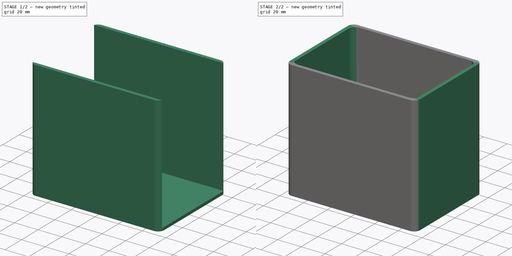
[diagram: build sequence overview — one tinted view per stage of 2, left to right]
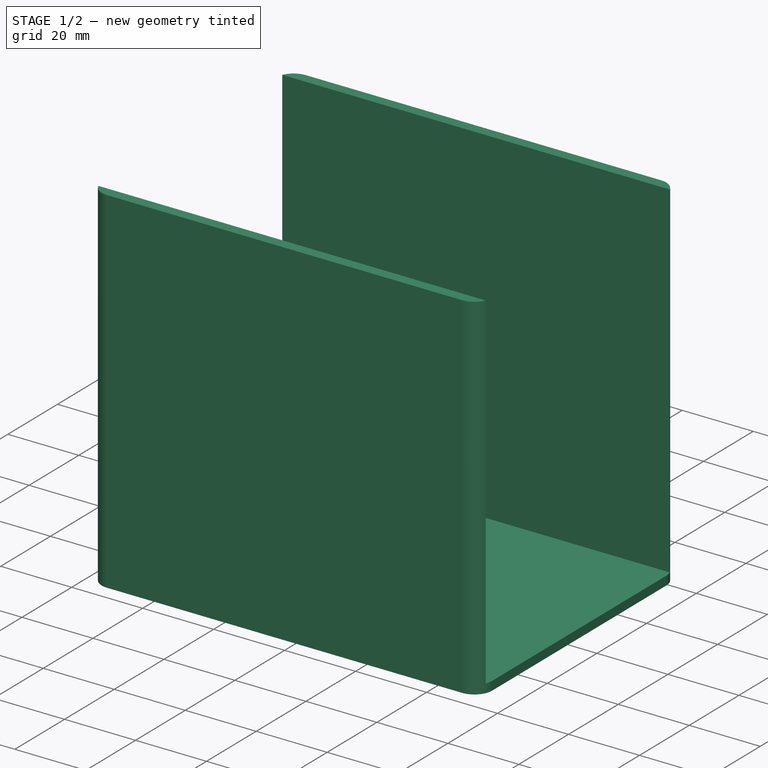
[diagram: stage 1 of 2 — iso view after this stage's code; geometry added in this stage tinted green]
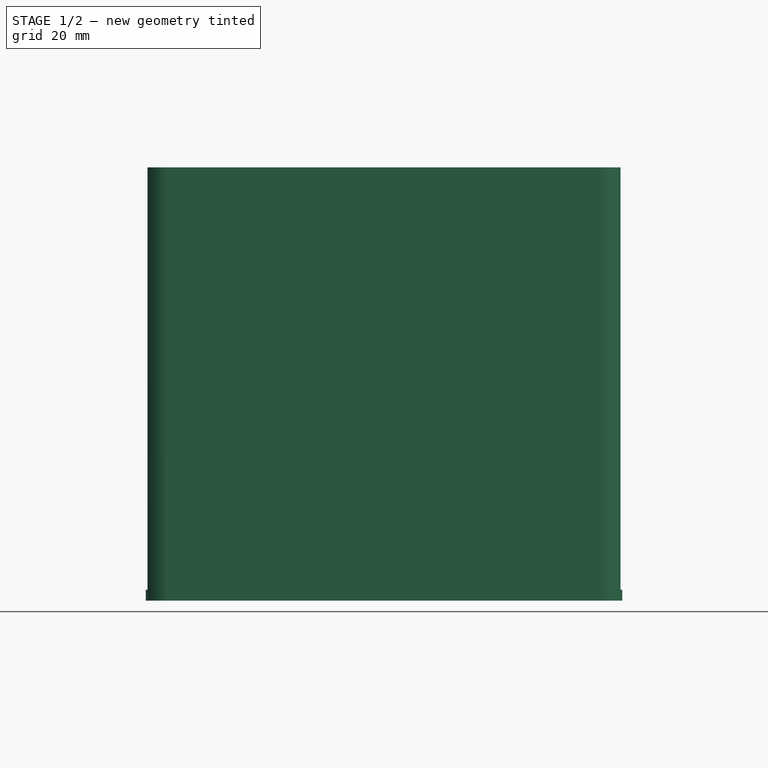
[diagram: stage 1 of 2 — front view after this stage's code; geometry added in this stage tinted green]
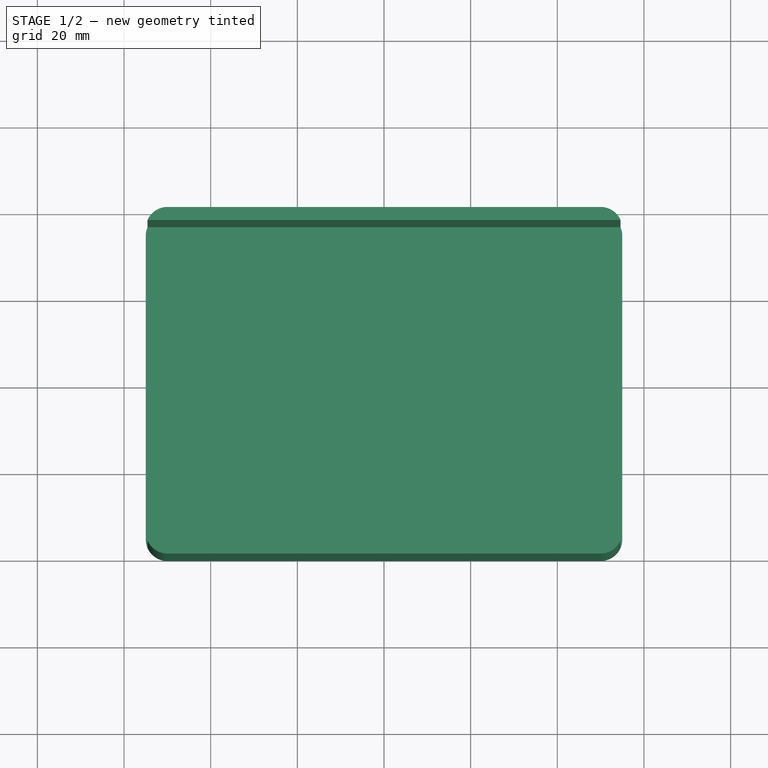
[diagram: stage 1 of 2 — top view after this stage's code; geometry added in this stage tinted green]
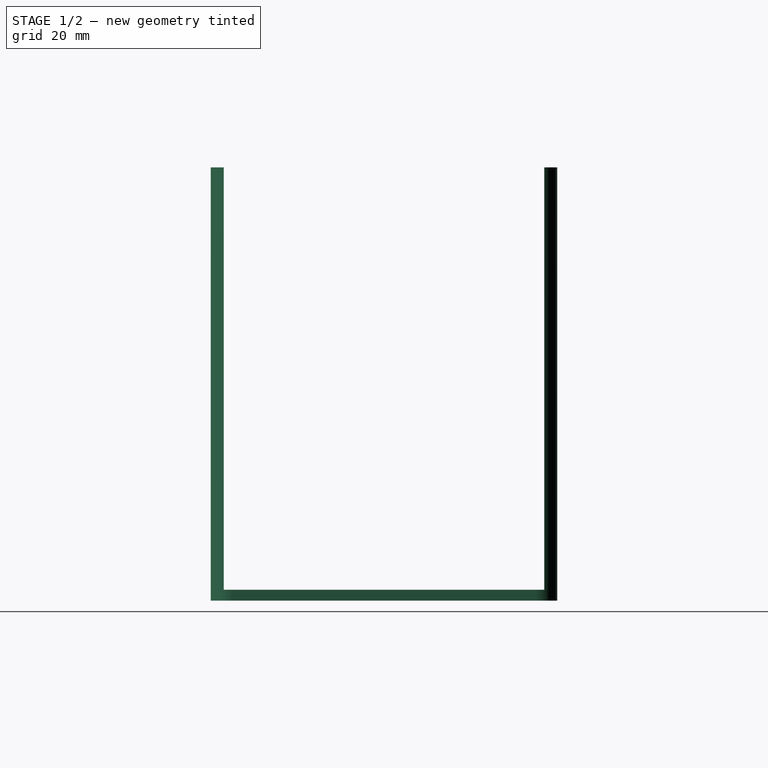
[diagram: stage 1 of 2 — right view after this stage's code; geometry added in this stage tinted green]
FCSTD DOCUMENT  (FreeCAD 0.19R24267 +99 (Git))
Label: case_spi4_v4
License: All rights reserved
LicenseURL: http://en.wikipedia.org/wiki/All_rights_reserved
objects: Sketcher::SketchObject×4, PartDesign::Pad×2, PartDesign::Pocket×2, PartDesign::Body×1, Spreadsheet::Sheet×1
note: 13 computed .brp shape members not serialized (recipe doc carries the construction recipe); baked Part::Feature solids carry a one-line shape summary decoded from their .brp

FEATURE [Sketcher::SketchObject] Sketch  label="external_rough_case"
  FullyConstrained = true
  MapMode = 5
  Support = -> [XY_Plane]
  expr: Constraints[18] = <<param>>.extW
  expr: Constraints[19] = <<param>>.extL
  expr: Constraints[20] = <<param>>.extR
  sketch-geometry (10):
    g0: ArcOfCircle CenterX=-50 CenterY=35 CenterZ=0 NormalX=0 NormalY=0 NormalZ=1 AngleXU=0 Radius=5 StartAngle=1.5708 EndAngle=3.14159
    g1: ArcOfCircle CenterX=50 CenterY=35 CenterZ=0 NormalX=0 NormalY=0 NormalZ=1 AngleXU=0 Radius=5 StartAngle=9e-16 EndAngle=1.57079
    g2: ArcOfCircle CenterX=50 CenterY=-35 CenterZ=0 NormalX=0 NormalY=0 NormalZ=1 AngleXU=0 Radius=5 StartAngle=4.71239 EndAngle=6.28319
    g3: ArcOfCircle CenterX=-50 CenterY=-35 CenterZ=0 NormalX=0 NormalY=0 NormalZ=1 AngleXU=0 Radius=5 StartAngle=3.14159 EndAngle=4.71239
    g4: LineSegment StartX=-55 StartY=35 StartZ=0 EndX=-55 EndY=-35 EndZ=0
    g5: LineSegment StartX=55 StartY=-35 StartZ=0 EndX=55 EndY=35 EndZ=0
    g6: LineSegment StartX=50 StartY=40 StartZ=0 EndX=-50 EndY=40 EndZ=0
    g7: LineSegment StartX=-50 StartY=-40 StartZ=0 EndX=50 EndY=-40 EndZ=0
    g8: LineSegment StartX=-55 StartY=35 StartZ=0 EndX=-50 EndY=35 EndZ=0
    g9: LineSegment StartX=-50 StartY=40 StartZ=0 EndX=-50 EndY=35 EndZ=0
  constraints (27):
    c: Symmetric(g0,g3,g-1)
    c: Symmetric(g1,g2,g-1)
    c: Symmetric(g1,g0,g-2)
    c: Coincident(g4,g0)
    c: Coincident(g4,g3)
    c: Vertical(g4)
    c: Coincident(g5,g2)
    c: Coincident(g5,g1)
    c: Vertical(g5)
    c: Coincident(g6,g1)
    c: Coincident(g6,g0)
    c: Horizontal(g6)
    c: Coincident(g7,g3)
    c: Coincident(g7,g2)
    c: Horizontal(g7)
    c: Equal(g6,g7)
    c: Symmetric(g0,g1,g-2)
    c: Symmetric(g2,g1,g-1)
    c: DistanceX(g0,g1) = 100
    c: DistanceY(g3,g0) = 70
    c: Radius(g0) = 5
    c: Coincident(g8,g0)
    c: Coincident(g8,g0)
    c: Coincident(g9,g0)
    c: Coincident(g9,g0)
    c: Perpendicular(g8,g9)
    c: Vertical(g9)
FEATURE [PartDesign::Pad] Pad
  Direction = (1,1,1)
  Length = 100
  Length2 = 100
  Profile = -> Sketch
  Type = 0
  expr: Length = <<param>>.case_height
FEATURE [Sketcher::SketchObject] Sketch001  label="inside_space"
  FullyConstrained = true
  MapMode = 5
  Placement = pos=(0,0,100) rot=(0,0,1;0rad)
  Support = -> [Pad]
  expr: Constraints[33] = <<param>>.intW
  expr: Constraints[32] = <<param>>.intL
  expr: Constraints[34] = <<param>>.intR
  sketch-geometry (13):
    g0: ArcOfCircle CenterX=-97 CenterY=32 CenterZ=0 NormalX=0 NormalY=0 NormalZ=1 AngleXU=0 Radius=5 StartAngle=1.5708 EndAngle=3.14159
    g1: ArcOfCircle CenterX=-97 CenterY=-32 CenterZ=0 NormalX=0 NormalY=0 NormalZ=1 AngleXU=0 Radius=5 StartAngle=3.14159 EndAngle=4.71239
    g2: ArcOfCircle CenterX=97 CenterY=-32 CenterZ=0 NormalX=0 NormalY=0 NormalZ=1 AngleXU=0 Radius=5 StartAngle=4.71239 EndAngle=6.28319
    g3: ArcOfCircle CenterX=97 CenterY=32 CenterZ=0 NormalX=0 NormalY=0 NormalZ=1 AngleXU=0 Radius=5 StartAngle=3e-16 EndAngle=1.5708
    g4: LineSegment StartX=-97 StartY=37 StartZ=0 EndX=97 EndY=37 EndZ=0
    g5: LineSegment StartX=102 StartY=32 StartZ=0 EndX=102 EndY=-32 EndZ=0
    g6: LineSegment StartX=97 StartY=-37 StartZ=0 EndX=-97 EndY=-37 EndZ=0
    g7: LineSegment StartX=-102 StartY=-32 StartZ=0 EndX=-102 EndY=32 EndZ=0
    g8: LineSegment StartX=-97 StartY=37 StartZ=0 EndX=-97 EndY=-37 EndZ=0
    g9: LineSegment StartX=97 StartY=-37 StartZ=0 EndX=97 EndY=37 EndZ=0
    g10: LineSegment StartX=102 StartY=32 StartZ=0 EndX=-102 EndY=32 EndZ=0
    g11: LineSegment StartX=-102 StartY=-32 StartZ=0 EndX=102 EndY=-32 EndZ=0
    g12: GeomPoint X=97 Y=32 Z=0
  constraints (35):
    c: Coincident(g4,g0)
    c: Coincident(g4,g3)
    c: Coincident(g5,g3)
    c: Coincident(g5,g2)
    c: Vertical(g5)
    c: Coincident(g6,g2)
    c: Coincident(g6,g1)
    c: Horizontal(g6)
    c: Coincident(g7,g1)
    c: Coincident(g7,g0)
    c: Coincident(g8,g0)
    c: Coincident(g8,g1)
    c: Coincident(g9,g2)
    c: Coincident(g9,g3)
    c: Coincident(g10,g3)
    c: Coincident(g10,g0)
    c: Coincident(g11,g1)
    c: Coincident(g11,g2)
    c: Horizontal(g11)
    c: Horizontal(g10)
    c: Vertical(g7)
    c: Vertical(g8)
    c: Equal(g3,g2)
    c: Equal(g2,g1)
    c: Equal(g1,g0)
    c: Symmetric(g3,g2,g-1)
    c: PointOnObject(g12,g9)
    c: PointOnObject(g12,g10)
    c: Coincident(g3,g12)
    c: PointOnObject(g1,g11)
    c: PointOnObject(g1,g8)
    c: Symmetric(g0,g3,g-2)
    c: DistanceY(g7,g7) = 64
    c: DistanceX(g4,g4) = 194
    c: Radius(g0) = 5
FEATURE [PartDesign::Pocket] Pocket
  BaseFeature = -> Pad
  Length = 97.5
  Length2 = 100
  Profile = -> Sketch001
  Refine = true
  Type = 0
  expr: Length = <<param>>.case_height - <<param>>.floor
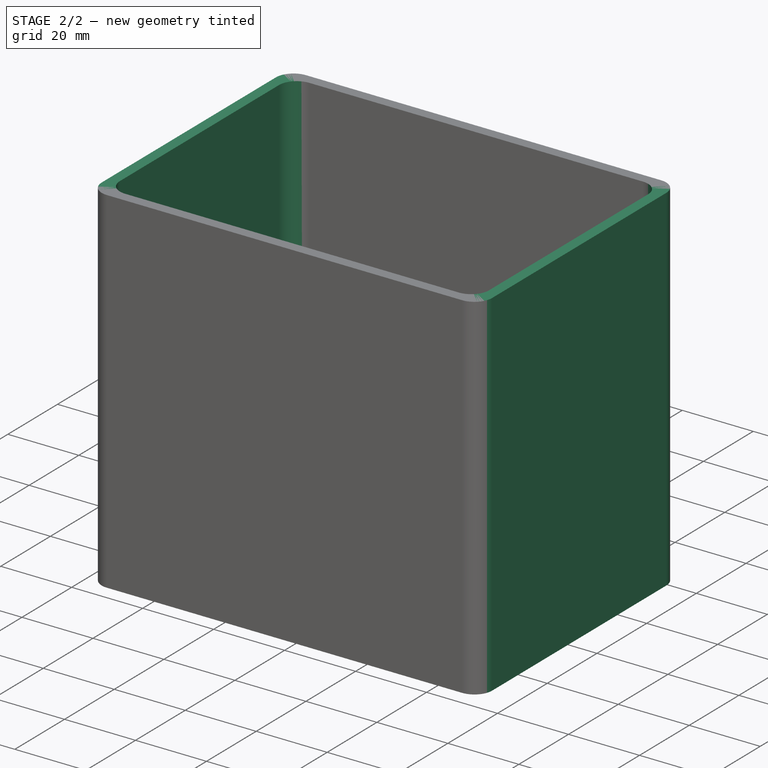
[diagram: stage 2 of 2 — iso view after this stage's code; geometry added in this stage tinted green]
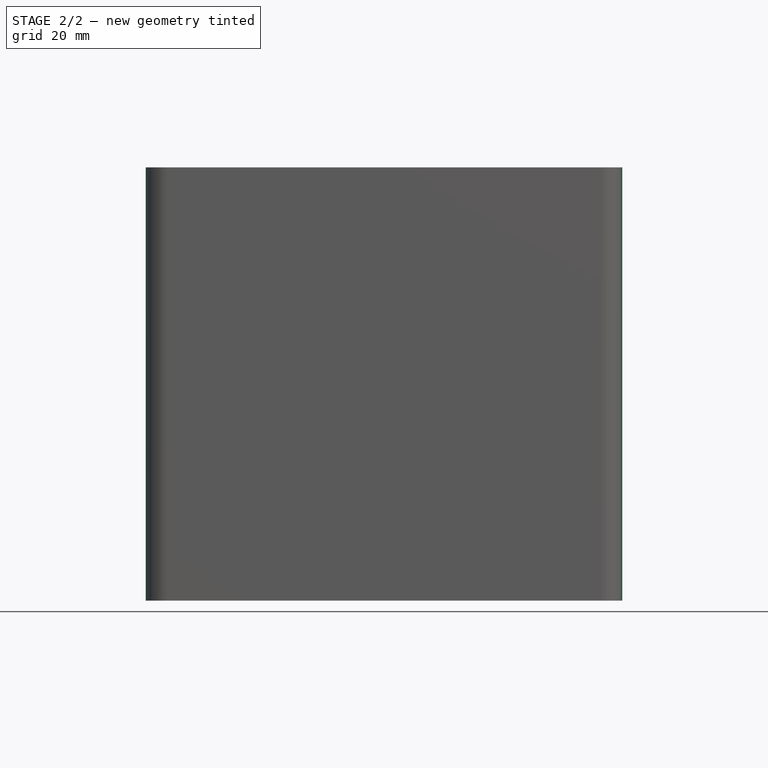
[diagram: stage 2 of 2 — front view after this stage's code; geometry added in this stage tinted green]
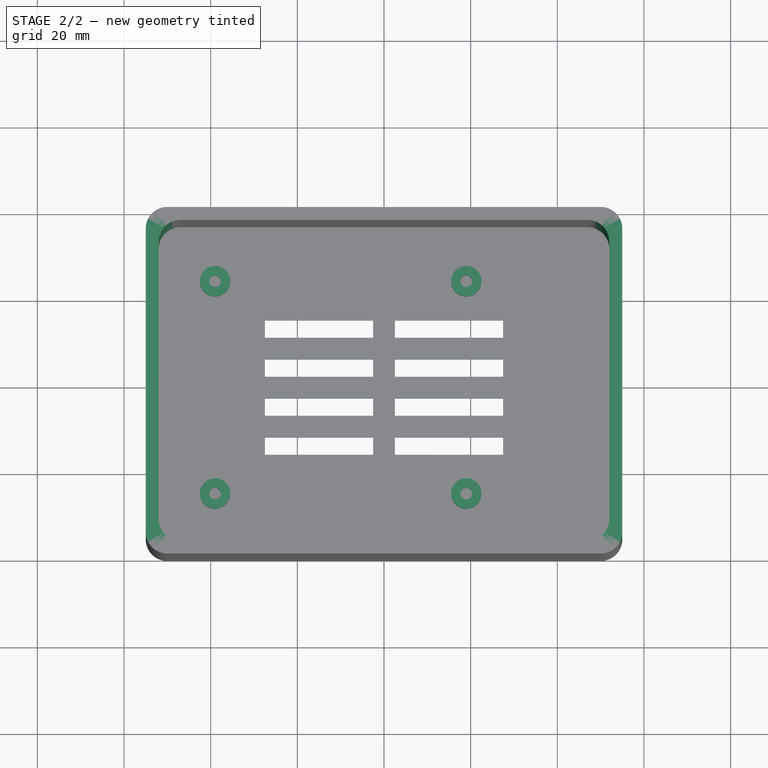
[diagram: stage 2 of 2 — top view after this stage's code; geometry added in this stage tinted green]
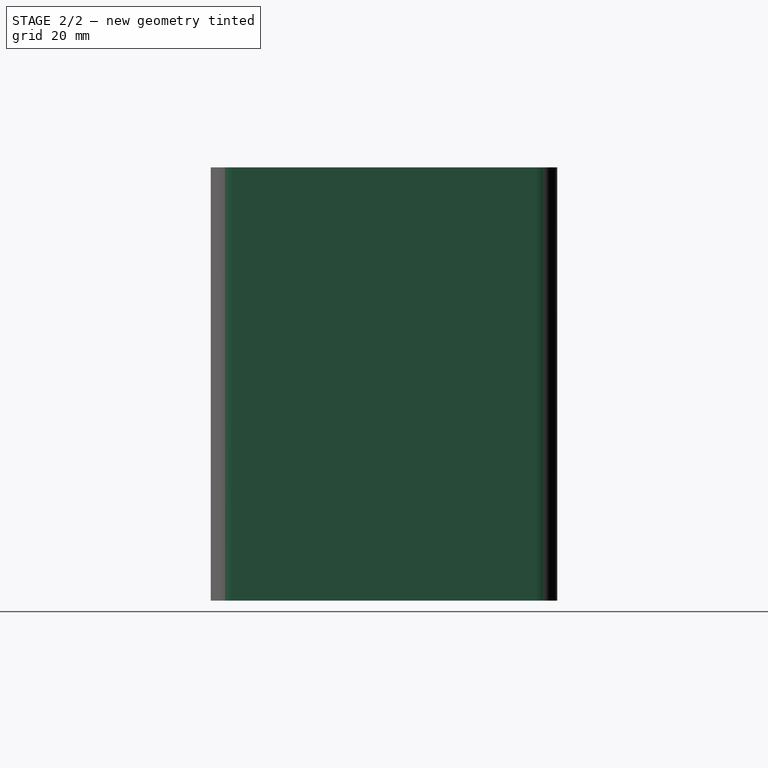
[diagram: stage 2 of 2 — right view after this stage's code; geometry added in this stage tinted green]
FEATURE [Sketcher::SketchObject] Sketch002  label="mounting_pads"
  FullyConstrained = true
  MapMode = 5
  Placement = pos=(0,0,2.5) rot=(0,0,1;0rad)
  Support = -> [Pocket]
  expr: Constraints[9] = <<param>>.pad_int
  expr: Constraints[10] = <<param>>.pad_ext
  sketch-geometry (12):
    g0: LineSegment StartX=-39 StartY=24.5 StartZ=0 EndX=19 EndY=24.5 EndZ=0
    g1: LineSegment StartX=19 StartY=24.5 StartZ=0 EndX=19 EndY=-24.5 EndZ=0
    g2: LineSegment StartX=19 StartY=-24.5 StartZ=0 EndX=-39 EndY=-24.5 EndZ=0
    g3: LineSegment StartX=-39 StartY=-24.5 StartZ=0 EndX=-39 EndY=24.5 EndZ=0
    g4: Circle CenterX=-39 CenterY=24.5 CenterZ=0 NormalX=0 NormalY=0 NormalZ=1 AngleXU=0 Radius=1.35
    g5: Circle CenterX=-39 CenterY=24.5 CenterZ=0 NormalX=0 NormalY=0 NormalZ=1 AngleXU=0 Radius=5
    g6: Circle CenterX=-39 CenterY=-24.5 CenterZ=0 NormalX=0 NormalY=0 NormalZ=1 AngleXU=0 Radius=5
    g7: Circle CenterX=-39 CenterY=-24.5 CenterZ=0 NormalX=0 NormalY=0 NormalZ=1 AngleXU=0 Radius=1.35
    g8: Circle CenterX=19 CenterY=-24.5 CenterZ=0 NormalX=0 NormalY=0 NormalZ=1 AngleXU=0 Radius=1.35
    g9: Circle CenterX=19 CenterY=-24.5 CenterZ=0 NormalX=0 NormalY=0 NormalZ=1 AngleXU=0 Radius=5
    g10: Circle CenterX=19 CenterY=24.5 CenterZ=0 NormalX=0 NormalY=0 NormalZ=1 AngleXU=0 Radius=1.35
    g11: Circle CenterX=19 CenterY=24.5 CenterZ=0 NormalX=0 NormalY=0 NormalZ=1 AngleXU=0 Radius=5
  constraints (27):
    c: Coincident(g0,g1)
    c: Coincident(g1,g2)
    c: Coincident(g2,g3)
    c: Coincident(g3,g0)
    c: Horizontal(g0)
    c: Horizontal(g2)
    c: Vertical(g3)
    c: Coincident(g4,g0)
    c: Coincident(g5,g4)
    c: Radius(g4) = 1.35
    c: Radius(g5) = 5
    c: Coincident(g6,g7)
    c: Equal(g4,g7) = 1.35
    c: Equal(g5,g6) = 3.25
    c: Coincident(g7,g2)
    c: Coincident(g9,g8)
    c: Equal(g4,g8) = 1.35
    c: Equal(g5,g9) = 3.25
    c: Coincident(g9,g1)
    c: Coincident(g11,g10)
    c: Equal(g4,g10) = 1.35
    c: Equal(g5,g11) = 3.25
    c: Coincident(g11,g0)
    c: DistanceX(g0,g0) = 58
    c: DistanceY(g3,g3) = 49
    c: Symmetric(g10,g8,g-1)
    c: DistanceX(g6,g-1) = 39
FEATURE [PartDesign::Pad] Pad001
  BaseFeature = -> Pocket
  Direction = (1,1,1)
  Length = 5
  Length2 = 100
  Profile = -> Sketch002
  Refine = true
  Type = 0
  expr: Length = <<param>>.pad_height
FEATURE [Sketcher::SketchObject] Sketch003  label="bottom_vents"
  FullyConstrained = true
  MapMode = 5
  Placement = pos=(0,0,7.5) rot=(0,0,1;0rad)
  Support = -> [Pad001]
  expr: Constraints[8] = <<param>>.vent_W
  expr: Constraints[48] = <<param>>.vent_S
  expr: Constraints[9] = <<param>>.vent_L
  expr: Constraints[113] = <<param>>.vent_S
  sketch-geometry (42):
    g0: LineSegment StartX=-27.5 StartY=15.5 StartZ=0 EndX=-2.5 EndY=15.5 EndZ=0
    g1: LineSegment StartX=-2.5 StartY=15.5 StartZ=0 EndX=-2.5 EndY=11.5 EndZ=0
    g2: LineSegment StartX=-2.5 StartY=11.5 StartZ=0 EndX=-27.5 EndY=11.5 EndZ=0
    g3: LineSegment StartX=-27.5 StartY=11.5 StartZ=0 EndX=-27.5 EndY=15.5 EndZ=0
    g4: LineSegment StartX=2.5 StartY=15.5 StartZ=0 EndX=27.5 EndY=15.5 EndZ=0
    g5: LineSegment StartX=27.5 StartY=15.5 StartZ=0 EndX=27.5 EndY=11.5 EndZ=0
    g6: LineSegment StartX=27.5 StartY=11.5 StartZ=0 EndX=2.5 EndY=11.5 EndZ=0
    g7: LineSegment StartX=2.5 StartY=11.5 StartZ=0 EndX=2.5 EndY=15.5 EndZ=0
    g8: LineSegment StartX=-27.5 StartY=6.5 StartZ=0 EndX=-2.5 EndY=6.5 EndZ=0
    g9: LineSegment StartX=-2.5 StartY=6.5 StartZ=0 EndX=-2.5 EndY=2.5 EndZ=0
    g10: LineSegment StartX=-2.5 StartY=2.5 StartZ=0 EndX=-27.5 EndY=2.5 EndZ=0
    g11: LineSegment StartX=-27.5 StartY=2.5 StartZ=0 EndX=-27.5 EndY=6.5 EndZ=0
    g12: LineSegment StartX=2.5 StartY=6.5 StartZ=0 EndX=27.5 EndY=6.5 EndZ=0
    g13: LineSegment StartX=27.5 StartY=6.5 StartZ=0 EndX=27.5 EndY=2.5 EndZ=0
    g14: LineSegment StartX=27.5 StartY=2.5 StartZ=0 EndX=2.5 EndY=2.5 EndZ=0
    g15: LineSegment StartX=2.5 StartY=2.5 StartZ=0 EndX=2.5 EndY=6.5 EndZ=0
    g16: LineSegment StartX=2.5 StartY=11.5 StartZ=0 EndX=-2.5 EndY=11.5 EndZ=0
    g17: LineSegment StartX=-2.5 StartY=11.5 StartZ=0 EndX=-2.5 EndY=6.5 EndZ=0
    g18: LineSegment StartX=-2.5 StartY=6.5 StartZ=0 EndX=2.5 EndY=6.5 EndZ=0
    g19: LineSegment StartX=2.5 StartY=6.5 StartZ=0 EndX=2.5 EndY=11.5 EndZ=0
    g20: LineSegment StartX=-27.5 StartY=-2.5 StartZ=0 EndX=-2.5 EndY=-2.5 EndZ=0
    g21: LineSegment StartX=-2.5 StartY=-2.5 StartZ=0 EndX=-2.5 EndY=-6.5 EndZ=0
    g22: LineSegment StartX=-2.5 StartY=-6.5 StartZ=0 EndX=-27.5 EndY=-6.5 EndZ=0
    g23: LineSegment StartX=-27.5 StartY=-6.5 StartZ=0 EndX=-27.5 EndY=-2.5 EndZ=0
    g24: LineSegment StartX=2.5 StartY=-2.5 StartZ=0 EndX=27.5 EndY=-2.5 EndZ=0
    g25: LineSegment StartX=27.5 StartY=-2.5 StartZ=0 EndX=27.5 EndY=-6.5 EndZ=0
    g26: LineSegment StartX=27.5 StartY=-6.5 StartZ=0 EndX=2.5 EndY=-6.5 EndZ=0
    g27: LineSegment StartX=2.5 StartY=-6.5 StartZ=0 EndX=2.5 EndY=-2.5 EndZ=0
    g28: LineSegment StartX=-27.5 StartY=-11.5 StartZ=0 EndX=-2.5 EndY=-11.5 EndZ=0
    g29: LineSegment StartX=-2.5 StartY=-11.5 StartZ=0 EndX=-2.5 EndY=-15.5 EndZ=0
    g30: LineSegment StartX=-2.5 StartY=-15.5 StartZ=0 EndX=-27.5 EndY=-15.5 EndZ=0
    g31: LineSegment StartX=-27.5 StartY=-15.5 StartZ=0 EndX=-27.5 EndY=-11.5 EndZ=0
    g32: LineSegment StartX=2.5 StartY=-11.5 StartZ=0 EndX=27.5 EndY=-11.5 EndZ=0
    g33: LineSegment StartX=27.5 StartY=-11.5 StartZ=0 EndX=27.5 EndY=-15.5 EndZ=0
    g34: LineSegment StartX=27.5 StartY=-15.5 StartZ=0 EndX=2.5 EndY=-15.5 EndZ=0
    g35: LineSegment StartX=2.5 StartY=-15.5 StartZ=0 EndX=2.5 EndY=-11.5 EndZ=0
    g36: LineSegment StartX=2.5 StartY=-6.5 StartZ=0 EndX=-2.5 EndY=-6.5 EndZ=0
    g37: LineSegment StartX=-2.5 StartY=-6.5 StartZ=0 EndX=-2.5 EndY=-11.5 EndZ=0
    g38: LineSegment StartX=-2.5 StartY=-11.5 StartZ=0 EndX=2.5 EndY=-11.5 EndZ=0
    g39: LineSegment StartX=2.5 StartY=-11.5 StartZ=0 EndX=2.5 EndY=-6.5 EndZ=0
    g40: Circle CenterX=0 CenterY=0 CenterZ=0 NormalX=0 NormalY=0 NormalZ=1 AngleXU=0 Radius=3.53553
    g41: LineSegment StartX=2.5 StartY=2.5 StartZ=0 EndX=2.5 EndY=-2.5 EndZ=0
  constraints (114):
    c: Coincident(g0,g1)
    c: Coincident(g1,g2)
    c: Coincident(g2,g3)
    c: Coincident(g3,g0)
    c: Horizontal(g0)
    c: Horizontal(g2)
    c: Vertical(g1)
    c: Vertical(g3)
    c: DistanceX(g0,g0) = 25
    c: DistanceY(g3,g3) = 4
    c: Coincident(g4,g5)
    c: Coincident(g5,g6)
    c: Coincident(g6,g7)
    c: Coincident(g7,g4)
    c: Horizontal(g4)
    c: Horizontal(g6)
    c: Vertical(g5)
    c: Vertical(g7)
    c: Equal(g0,g4) = 25
    c: Equal(g3,g7) = 4
    c: Coincident(g8,g9)
    c: Coincident(g9,g10)
    c: Coincident(g10,g11)
    c: Coincident(g11,g8)
    c: Horizontal(g8)
    c: Horizontal(g10)
    c: Vertical(g9)
    c: Vertical(g11)
    c: Equal(g0,g8) = 25
    c: Equal(g3,g11) = 4
    c: Coincident(g12,g13)
    c: Coincident(g13,g14)
    c: Coincident(g14,g15)
    c: Coincident(g15,g12)
    c: Horizontal(g12)
    c: Horizontal(g14)
    c: Vertical(g13)
    c: Vertical(g15)
    c: Equal(g0,g12) = 25
    c: Equal(g3,g15) = 4
    c: Coincident(g16,g17)
    c: Coincident(g17,g18)
    c: Coincident(g18,g19)
    c: Coincident(g19,g16)
    c: Horizontal(g16)
    c: Vertical(g17)
    c: Vertical(g19)
    c: Coincident(g16,g6)
    c: DistanceX(g16,g16) = 5
    c: Equal(g17,g16)
    c: Coincident(g1,g16)
    c: Coincident(g8,g17)
    c: Coincident(g12,g18)
    c: Coincident(g20,g21)
    c: Coincident(g21,g22)
    c: Coincident(g22,g23)
    c: Coincident(g23,g20)
    c: Horizontal(g20)
    c: Horizontal(g22)
    c: Vertical(g21)
    c: Vertical(g23)
    c: Equal(g0,g20) = 25
    c: Equal(g3,g23) = 4
    c: Coincident(g24,g25)
    c: Coincident(g25,g26)
    c: Coincident(g26,g27)
    c: Coincident(g27,g24)
    c: Horizontal(g24)
    c: Horizontal(g26)
    c: Vertical(g25)
    c: Vertical(g27)
    c: Equal(g20,g24) = 25
    c: Equal(g23,g27) = 4
    c: Coincident(g28,g29)
    c: Coincident(g29,g30)
    c: Coincident(g30,g31)
    c: Coincident(g31,g28)
    c: Horizontal(g28)
    c: Horizontal(g30)
    c: Vertical(g29)
    c: Vertical(g31)
    c: Equal(g20,g28) = 25
    c: Equal(g23,g31) = 4
    c: Coincident(g32,g33)
    c: Coincident(g33,g34)
    c: Coincident(g34,g35)
    c: Coincident(g35,g32)
    c: Horizontal(g32)
    c: Horizontal(g34)
    c: Vertical(g33)
    c: Vertical(g35)
    c: Equal(g20,g32) = 25
    c: Equal(g23,g35) = 4
    c: Coincident(g36,g37)
    c: Coincident(g37,g38)
    c: Coincident(g38,g39)
    c: Coincident(g39,g36)
    c: Horizontal(g38)
    c: Vertical(g37)
    c: Vertical(g39)
    c: Coincident(g36,g26)
    c: Equal(g16,g36) = 5
    c: Equal(g37,g36)
    c: Coincident(g21,g36)
    c: Coincident(g28,g37)
    c: Coincident(g32,g38)
    c: Symmetric(g14,g9,g-2)
    c: Symmetric(g24,g20,g-2)
    c: PointOnObject(g14,g40)
    c: PointOnObject(g24,g40)
    c: Coincident(g40,g-1)
    c: Coincident(g41,g14)
    c: Coincident(g41,g24)
    c: DistanceY(g41,g41) = 5
FEATURE [PartDesign::Pocket] Pocket001
  BaseFeature = -> Pad001
  Length = 5
  Length2 = 100
  Profile = -> Sketch003
  Refine = true
  Type = 0
FEATURE [PartDesign::Body] Body  label="RPI_case"
  Group = -> [Sketch,Pad,Sketch001,Pocket,Sketch002,Pad001,Sketch003,Pocket001]
  Origin = -> Origin
  Tip = -> Pocket001
FEATURE [Spreadsheet::Sheet] Spreadsheet  label="param"
  cells = A2=external width; B2(extW)=100; A3=external length; B3(extL)=70; A4=external corner radius; B4(extR)=5; A5=internal width; B5(intW)=194; A6=internal length; B6(intL)=64; A7=internal corner radius; B7(intR)=5; A8=mounting pad radious external; B8(pad_int)=1.35; A9=mounting pad radious internal; B9(pad_ext)=5; A10=base thickness; B10(floor)=2.5; A11=case height; B11(case_height)=100; C11=system height for RPI+hat is about 50mm from desk to top of the sensor; A12=mounting pad height; B12(pad_height)=5; A13=bottom vent width; B13(vent_W)=25; A14=bottom vent length; B14(vent_L)=4; A15=bottom vent spaceing; B15(vent_S)=5
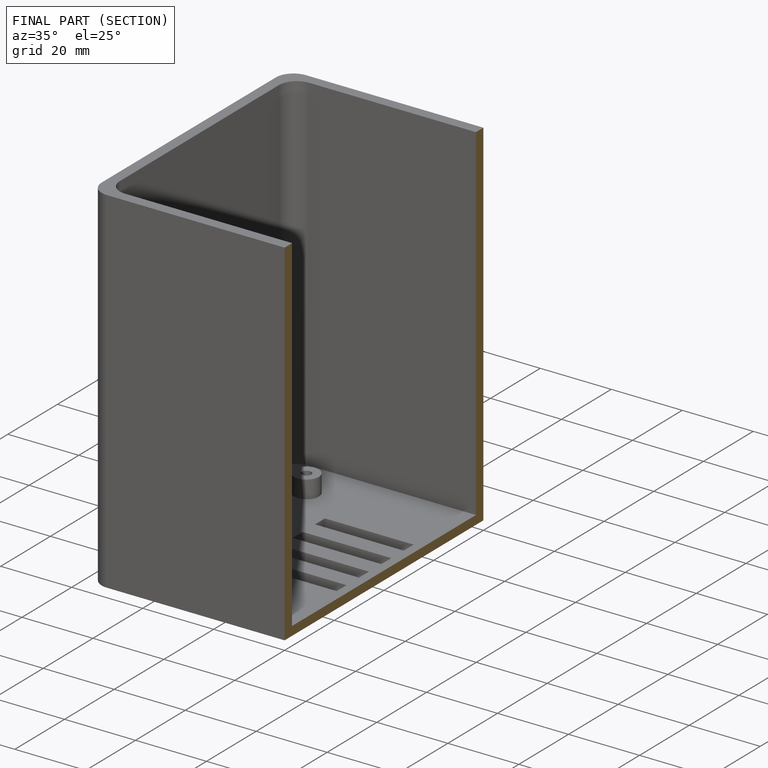
[diagram: finished part — half-section view (interior)]
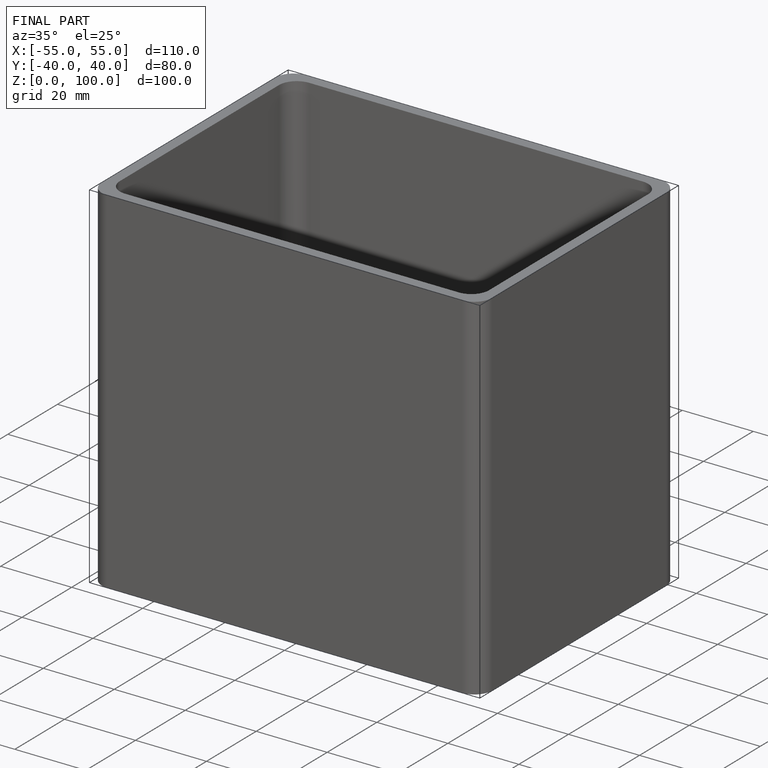
[diagram: finished part — iso view with bounding-box wireframe]
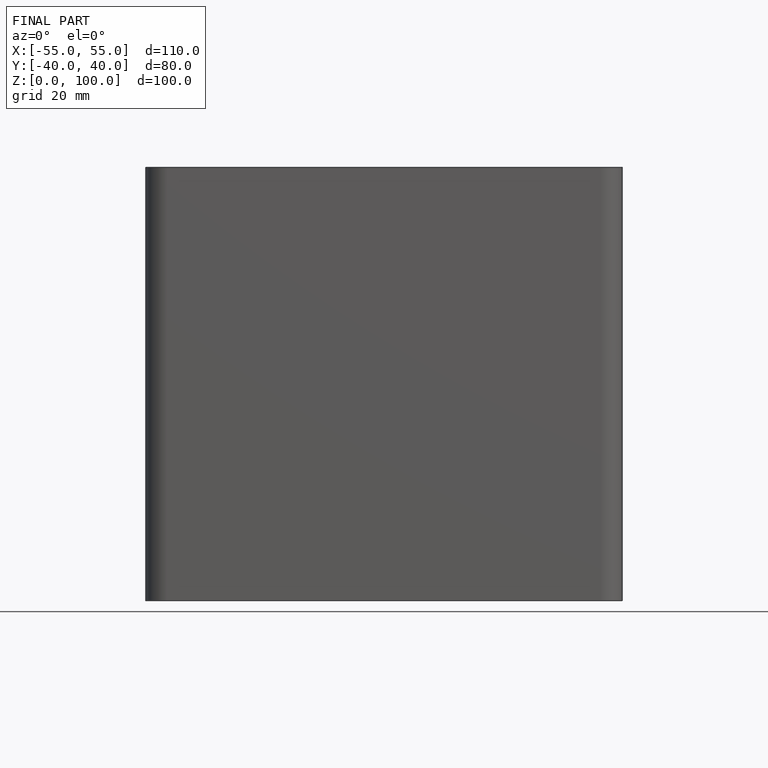
[diagram: finished part — front view with bounding-box wireframe]
